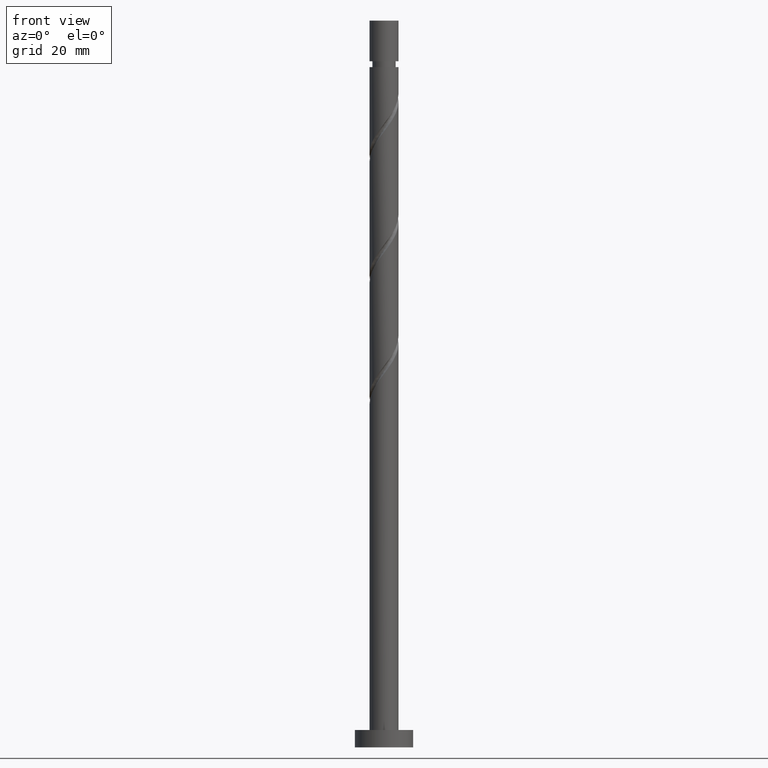
[diagram: clean part render]
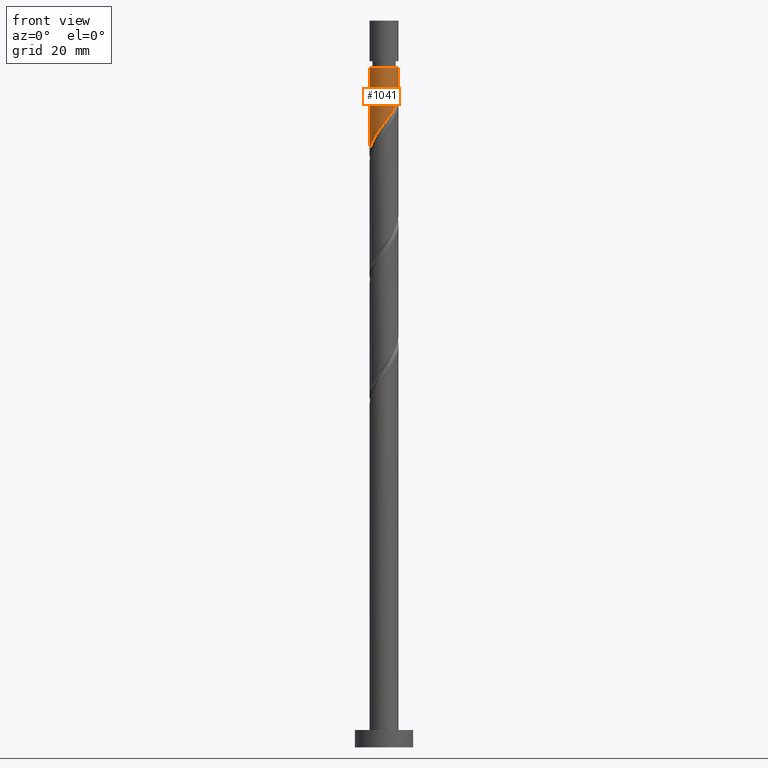
[diagram: same view with one face highlighted and labeled with its STEP entity id]
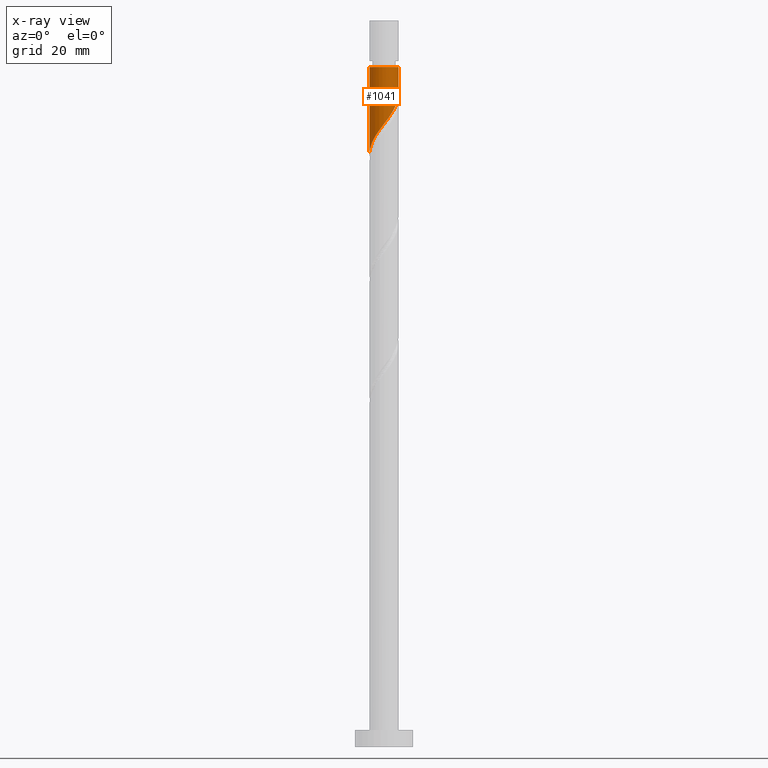
[diagram: x-ray of the same camera — body ghosted, the highlighted face saturated]
A machine part, front view. The second image highlights one B-rep face of the part: STEP entity #1041.
The next image is the same camera in x-ray: the body ghosted, the highlighted face saturated — about 0% of this face is hidden behind the body in this view.
In plain terms, the highlighted cylindrical surface (edge-blend (fillet) strip) has radius 2.5 mm, axis along (-0, -0, -1).
Its self-contained STEP definition (entity closure, byte-faithful):
#71 = LINE ( 'NONE', #1281, #545 ) ;
#86 = CARTESIAN_POINT ( 'NONE',  ( -0.8855355973484244636, -2.371204735821961673, 106.0591909838824876 ) ) ;
#94 = CARTESIAN_POINT ( 'NONE',  ( 0.2839469933725881079, -2.483822478550886892, 107.6216909838825302 ) ) ;
#115 = CARTESIAN_POINT ( 'NONE',  ( 2.500000000000000000, 3.061616997868382648E-16, 125.0000000000000000 ) ) ;
#146 = DIRECTION ( 'NONE',  ( -0.000000000000000000, -0.000000000000000000, -1.000000000000000000 ) ) ;
#190 = DIRECTION ( 'NONE',  ( -0.000000000000000000, -0.000000000000000000, -1.000000000000000000 ) ) ;
#204 = VERTEX_POINT ( 'NONE', #644 ) ;
#212 = CARTESIAN_POINT ( 'NONE',  ( 2.500000000000000444, 1.409351661621345041E-15, 112.4531600920194165 ) ) ;
#220 = CARTESIAN_POINT ( 'NONE',  ( -2.500000000000000000, -1.679227511719049326E-15, 102.0364934253527736 ) ) ;
#223 = CIRCLE ( 'NONE', #833, 2.499999999999997780 ) ;
#254 = DIRECTION ( 'NONE',  ( -1.000000000000000000, 0.000000000000000000, 0.000000000000000000 ) ) ;
#285 = CARTESIAN_POINT ( 'NONE',  ( -1.842554741020975051, -1.689672165344843435, 104.4966909838825160 ) ) ;
#314 = CARTESIAN_POINT ( 'NONE',  ( -1.574936960780884521, -1.981504166768771835, 105.0175243172158588 ) ) ;
#321 = CARTESIAN_POINT ( 'NONE',  ( -2.110172521261064915, -1.397840163920915035, 103.9758576505492016 ) ) ;
#328 = CARTESIAN_POINT ( 'NONE',  ( 2.176354451295366754, -1.230236279064654825, 110.7466909838825302 ) ) ;
#337 = CARTESIAN_POINT ( 'NONE',  ( -0.1094518397581966396, -2.528795264178038238, 107.1008576505491732 ) ) ;
#352 = ORIENTED_EDGE ( 'NONE', *, *, #1345, .F. ) ;
#373 = CARTESIAN_POINT ( 'NONE',  ( -2.500000000000000000, -1.679227511719049326E-15, 102.0364934253527736 ) ) ;
#389 = EDGE_LOOP ( 'NONE', ( #352, #784, #691, #563 ) ) ;
#492 = CARTESIAN_POINT ( 'NONE',  ( 2.500000000000000000, 1.409351661621345041E-15, 112.4531600920194307 ) ) ;
#515 = CARTESIAN_POINT ( 'NONE',  ( 2.499999999999997780, 3.061616997868381662E-16, 116.9966909838825018 ) ) ;
#545 = VECTOR ( 'NONE', #190, 1000.000000000000000 ) ;
#563 = ORIENTED_EDGE ( 'NONE', *, *, #1011, .F. ) ;
#573 = CARTESIAN_POINT ( 'NONE',  ( -2.438849692923733770, -0.6773458265033730497, 102.9341909838825018 ) ) ;
#588 = EDGE_CURVE ( 'NONE', #204, #1413, #71, .T. ) ;
#632 = DIRECTION ( 'NONE',  ( -0.000000000000000000, -0.000000000000000000, -1.000000000000000000 ) ) ;
#644 = CARTESIAN_POINT ( 'NONE',  ( -2.499999999999997780, 0.000000000000000000, 116.9966909838825018 ) ) ;
#669 = CARTESIAN_POINT ( 'NONE',  ( 1.037592995212144320, -2.274511107092399342, 108.6633576505492016 ) ) ;
#691 = ORIENTED_EDGE ( 'NONE', *, *, #588, .T. ) ;
#703 = CARTESIAN_POINT ( 'NONE',  ( 0.000000000000000000, 0.000000000000000000, 125.0000000000000000 ) ) ;
#754 = CARTESIAN_POINT ( 'NONE',  ( 0.000000000000000000, 0.000000000000000000, 116.9966909838825018 ) ) ;
#784 = ORIENTED_EDGE ( 'NONE', *, *, #878, .T. ) ;
#818 = CARTESIAN_POINT ( 'NONE',  ( 2.371204735821961673, -0.8855355973484245746, 111.2675243172158588 ) ) ;
#827 = FACE_OUTER_BOUND ( 'NONE', #389, .T. ) ;
#833 = AXIS2_PLACEMENT_3D ( 'NONE', #754, #632, #254 ) ;
#878 = EDGE_CURVE ( 'NONE', #1352, #204, #223, .T. ) ;
#890 = CARTESIAN_POINT ( 'NONE',  ( -0.4974937185533105377, -2.450000000000001066, 106.5800243172158446 ) ) ;
#906 = VECTOR ( 'NONE', #146, 1000.000000000000000 ) ;
#936 = CARTESIAN_POINT ( 'NONE',  ( 2.450000000000001066, -0.4974937185533107042, 111.7883576505492016 ) ) ;
#943 = CARTESIAN_POINT ( 'NONE',  ( 1.689672165344843435, -1.842554741020975051, 109.7050243172158446 ) ) ;
#1011 = EDGE_CURVE ( 'NONE', #1472, #1413, #1144, .T. ) ;
#1036 = DIRECTION ( 'NONE',  ( -0.000000000000000000, -0.000000000000000000, -1.000000000000000000 ) ) ;
#1041 = ADVANCED_FACE ( 'NONE', ( #827 ), #1070, .T. ) ;
#1052 = CARTESIAN_POINT ( 'NONE',  ( 1.981504166768771835, -1.574936960780884521, 110.2258576505491448 ) ) ;
#1061 = CARTESIAN_POINT ( 'NONE',  ( -2.483822478550886892, -0.2839469933725882189, 102.4133576505491874 ) ) ;
#1070 = CYLINDRICAL_SURFACE ( 'NONE', #1569, 2.500000000000000000 ) ;
#1144 =( BOUNDED_CURVE ( )  B_SPLINE_CURVE ( 2, ( #212, #1540, #936, #818, #328, #1052, #943, #1376, #669, #1432, #94, #337, #890, #86, #1313, #314, #285, #321, #1157, #573, #1061, #1296, #220 ),
 .UNSPECIFIED., .F., .T. ) 
 B_SPLINE_CURVE_WITH_KNOTS ( ( 3, 2, 2, 2, 2, 2, 2, 2, 2, 2, 2, 3 ),
 ( 0.3045322023138553602, 0.3125000000000000000, 0.3250000000000000111, 0.3375000000000000222, 0.3499999999999999778, 0.3624999999999999889, 0.3750000000000000000, 0.3875000000000000111, 0.4000000000000000222, 0.4124999999999999778, 0.4249999999999999889, 0.4295322023138552492 ),
 .UNSPECIFIED. ) 
 CURVE ( )  GEOMETRIC_REPRESENTATION_ITEM ( )  RATIONAL_B_SPLINE_CURVE ( ( 0.9039174447099351806, 0.9019565955404647006, 0.9090909090909129464, 0.8978984914501291215, 0.9090909090909129464, 0.8978984914501291215, 0.9090909090909129464, 0.8978984914501291215, 0.9090909090909129464, 0.8978984914501291215, 0.9090909090909129464, 0.8978984914501291215, 0.9090909090909129464, 0.8978984914501291215, 0.9090909090909129464, 0.8978984914501291215, 0.9090909090909129464, 0.8978984914501291215, 0.9090909090909129464, 0.8978984914501291215, 0.9090909090909129464, 0.9050328050005773672, 0.9039174447099354026 ) ) 
 REPRESENTATION_ITEM ( '' )  );
#1157 = CARTESIAN_POINT ( 'NONE',  ( -2.274511107092399342, -1.037592995212144320, 103.4550243172158730 ) ) ;
#1190 = DIRECTION ( 'NONE',  ( -1.000000000000000000, 0.000000000000000000, 0.000000000000000000 ) ) ;
#1281 = CARTESIAN_POINT ( 'NONE',  ( -2.500000000000000000, 0.000000000000000000, 125.0000000000000000 ) ) ;
#1296 = CARTESIAN_POINT ( 'NONE',  ( -2.500000000000000444, -0.1424343436160793730, 102.2260045145600600 ) ) ;
#1313 = CARTESIAN_POINT ( 'NONE',  ( -1.230236279064654381, -2.176354451295366754, 105.5383576505492016 ) ) ;
#1345 = EDGE_CURVE ( 'NONE', #1352, #1472, #1449, .T. ) ;
#1352 = VERTEX_POINT ( 'NONE', #515 ) ;
#1376 = CARTESIAN_POINT ( 'NONE',  ( 1.397840163920915035, -2.110172521261064915, 109.1841909838825302 ) ) ;
#1413 = VERTEX_POINT ( 'NONE', #373 ) ;
#1432 = CARTESIAN_POINT ( 'NONE',  ( 0.6773458265033729386, -2.438849692923733770, 108.1425243172158588 ) ) ;
#1449 = LINE ( 'NONE', #115, #906 ) ;
#1472 = VERTEX_POINT ( 'NONE', #492 ) ;
#1540 = CARTESIAN_POINT ( 'NONE',  ( 2.499999999999999112, -0.2512594538148096301, 112.1188555166116174 ) ) ;
#1569 = AXIS2_PLACEMENT_3D ( 'NONE', #703, #1036, #1190 ) ;